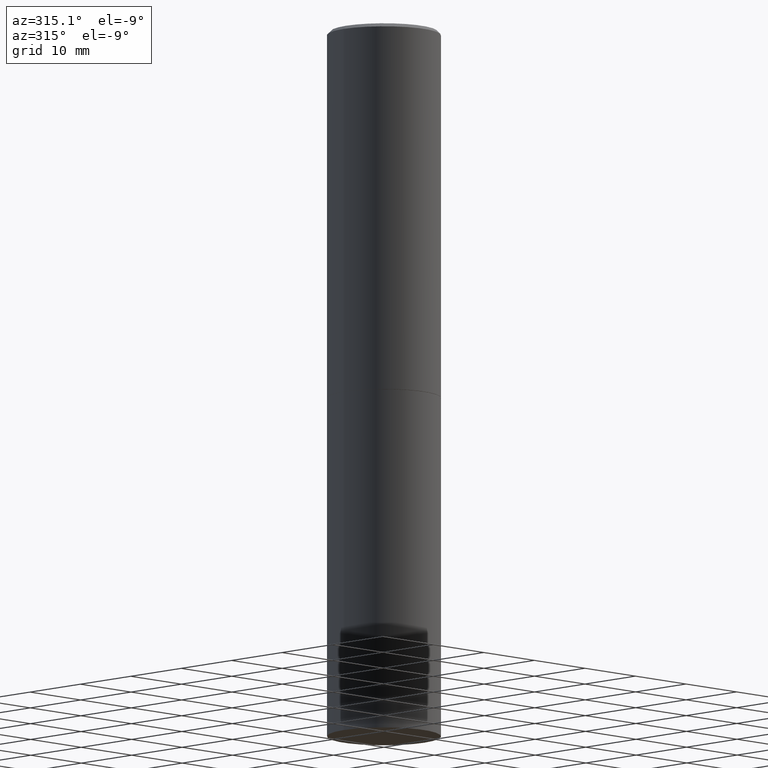
[diagram: clean part render]
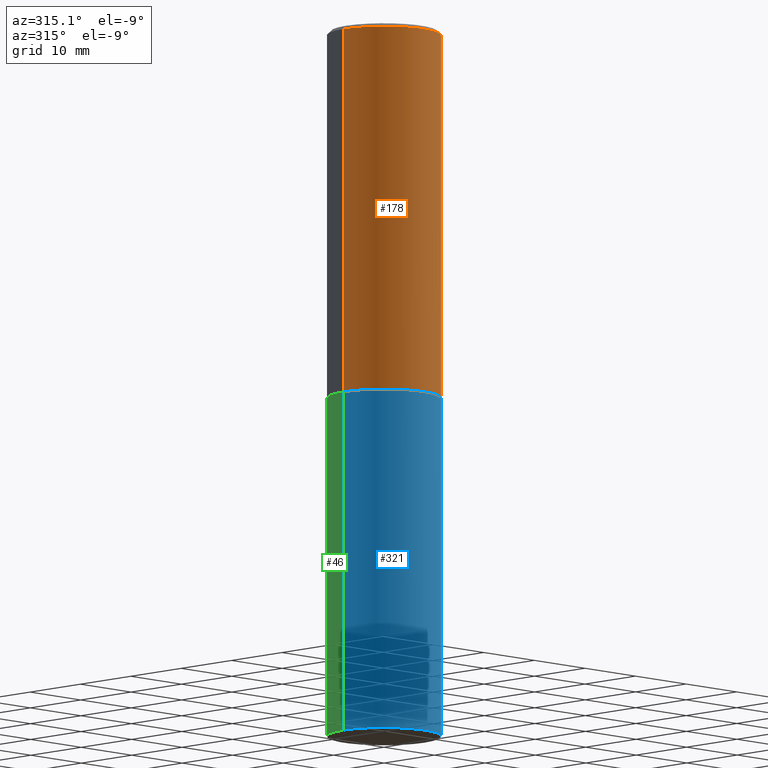
[diagram: same view with three faces highlighted in distinct colors, each labeled with its STEP entity id]
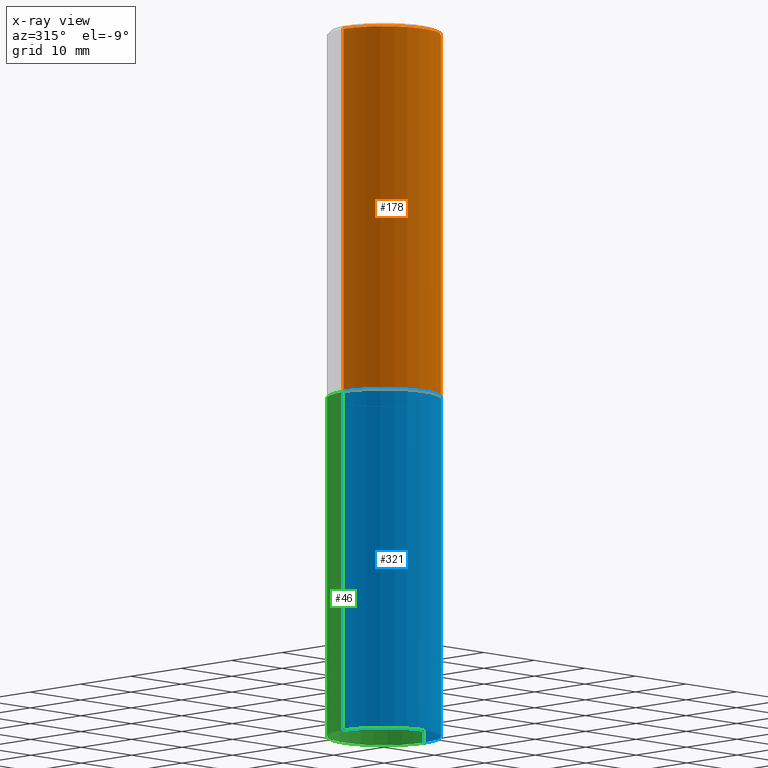
[diagram: x-ray of the same camera — body ghosted, the three highlighted faces saturated]
A machine part, auxiliary view with three faces highlighted in distinct colors.
The next image is the same camera in x-ray (body ghosted, the three faces saturated) — at least one of them is partly hidden behind the body in this view.
Their STEP definitions:

[orange] entity #178 — the highlighted cylindrical surface (partial cylindrical patch) has radius 7.9997 mm, axis along (-0, 0, 1).
#2 = AXIS2_PLACEMENT_3D ( 'NONE', #97, #223, #203 ) ;
#7 = DIRECTION ( 'NONE',  ( 1.000000000000000000, -6.982962677686266711E-15, 0.000000000000000000 ) ) ;
#9 = LINE ( 'NONE', #352, #198 ) ;
#12 = CARTESIAN_POINT ( 'NONE',  ( 0.000000000000000000, 0.000000000000000000, 0.000000000000000000 ) ) ;
#13 = CARTESIAN_POINT ( 'NONE',  ( -0.3149500000000000077, -1.369195024882416092E-15, -2.046199999999999797 ) ) ;
#14 = CIRCLE ( 'NONE', #2, 0.3149500000000000077 ) ;
#37 = VERTEX_POINT ( 'NONE', #239 ) ;
#41 = EDGE_CURVE ( 'NONE', #37, #181, #272, .T. ) ;
#47 = CARTESIAN_POINT ( 'NONE',  ( 0.3149499999999998967, -2.199284095337288688E-15, 1.535751875536929289E-29 ) ) ;
#52 = VERTEX_POINT ( 'NONE', #271 ) ;
#55 = ORIENTED_EDGE ( 'NONE', *, *, #41, .T. ) ;
#64 = DIRECTION ( 'NONE',  ( -2.445468806185136597E-29, 3.491481338843145583E-15, 1.000000000000000000 ) ) ;
#71 = VERTEX_POINT ( 'NONE', #13 ) ;
#79 = CYLINDRICAL_SURFACE ( 'NONE', #283, 0.3149499999999998967 ) ;
#97 = CARTESIAN_POINT ( 'NONE',  ( 5.003918271216025517E-29, -7.144269115540843617E-15, -2.046199999999999797 ) ) ;
#116 = EDGE_CURVE ( 'NONE', #71, #37, #14, .T. ) ;
#134 = DIRECTION ( 'NONE',  ( -2.445468806185136877E-29, 3.491481338843145188E-15, 1.000000000000000000 ) ) ;
#135 = AXIS2_PLACEMENT_3D ( 'NONE', #267, #64, #7 ) ;
#137 = CARTESIAN_POINT ( 'NONE',  ( 0.3149499999999997302, -2.230543471175005478E-15, -0.02000000000000006981 ) ) ;
#156 = DIRECTION ( 'NONE',  ( -2.445468806185136597E-29, 3.491481338843145583E-15, 1.000000000000000000 ) ) ;
#178 = ADVANCED_FACE ( 'NONE', ( #193 ), #79, .T. ) ;
#181 = VERTEX_POINT ( 'NONE', #137 ) ;
#188 = DIRECTION ( 'NONE',  ( -2.445468806185136877E-29, 3.491481338843145188E-15, 1.000000000000000000 ) ) ;
#193 = FACE_OUTER_BOUND ( 'NONE', #319, .T. ) ;
#198 = VECTOR ( 'NONE', #188, 39.37007874015748143 ) ;
#202 = ORIENTED_EDGE ( 'NONE', *, *, #256, .F. ) ;
#203 = DIRECTION ( 'NONE',  ( 1.000000000000000000, -6.982962677686266711E-15, 0.000000000000000000 ) ) ;
#210 = ORIENTED_EDGE ( 'NONE', *, *, #116, .T. ) ;
#212 = ORIENTED_EDGE ( 'NONE', *, *, #292, .F. ) ;
#223 = DIRECTION ( 'NONE',  ( -2.445468806185136597E-29, 3.491481338843145583E-15, 1.000000000000000000 ) ) ;
#239 = CARTESIAN_POINT ( 'NONE',  ( 0.3149500000000000077, -9.343553210878133488E-15, -2.046199999999999797 ) ) ;
#256 = EDGE_CURVE ( 'NONE', #71, #52, #9, .T. ) ;
#267 = CARTESIAN_POINT ( 'NONE',  ( 4.890937612370289799E-31, -6.982962677686315028E-17, -0.02000000000000006981 ) ) ;
#271 = CARTESIAN_POINT ( 'NONE',  ( -0.3149499999999997302, 2.129454468560424601E-15, -0.02000000000000006981 ) ) ;
#272 = LINE ( 'NONE', #47, #275 ) ;
#275 = VECTOR ( 'NONE', #134, 39.37007874015748143 ) ;
#283 = AXIS2_PLACEMENT_3D ( 'NONE', #12, #156, #333 ) ;
#292 = EDGE_CURVE ( 'NONE', #52, #181, #362, .T. ) ;
#319 = EDGE_LOOP ( 'NONE', ( #202, #210, #55, #212 ) ) ;
#333 = DIRECTION ( 'NONE',  ( 1.000000000000000000, -6.982962677686265922E-15, 4.876176775795935232E-29 ) ) ;
#352 = CARTESIAN_POINT ( 'NONE',  ( -0.3149499999999998967, 2.237854346276434801E-15, -1.549218606675782116E-29 ) ) ;
#362 = CIRCLE ( 'NONE', #135, 0.3149499999999997302 ) ;

[blue] entity #321 — the highlighted cylindrical surface (partial cylindrical patch) has radius 7.9997 mm, axis along (-0, 0, 1).
#17 = VERTEX_POINT ( 'NONE', #304 ) ;
#25 = CIRCLE ( 'NONE', #31, 0.3149500000000000077 ) ;
#31 = AXIS2_PLACEMENT_3D ( 'NONE', #103, #215, #76 ) ;
#44 = AXIS2_PLACEMENT_3D ( 'NONE', #228, #346, #177 ) ;
#60 = EDGE_LOOP ( 'NONE', ( #253, #61, #230, #309 ) ) ;
#61 = ORIENTED_EDGE ( 'NONE', *, *, #273, .T. ) ;
#67 = CARTESIAN_POINT ( 'NONE',  ( 5.006363740022211120E-29, -7.147760596879686624E-15, -2.047199999999999687 ) ) ;
#72 = CARTESIAN_POINT ( 'NONE',  ( -0.3149500000000000077, -8.209006967676138246E-15, -2.047199999999999687 ) ) ;
#76 = DIRECTION ( 'NONE',  ( 1.000000000000000000, -6.982962677686269866E-15, 0.000000000000000000 ) ) ;
#83 = EDGE_CURVE ( 'NONE', #170, #200, #165, .T. ) ;
#87 = CIRCLE ( 'NONE', #209, 0.3149500000000000077 ) ;
#103 = CARTESIAN_POINT ( 'NONE',  ( 9.627810689950883669E-29, -1.374596203102546341E-14, -3.937000000000000277 ) ) ;
#104 = CARTESIAN_POINT ( 'NONE',  ( 0.3149500000000000077, -2.199284095337289871E-15, 1.535751875536930130E-29 ) ) ;
#150 = CARTESIAN_POINT ( 'NONE',  ( 0.3149500000000000077, -1.594524612636275486E-14, -3.937000000000000277 ) ) ;
#165 = LINE ( 'NONE', #104, #168 ) ;
#168 = VECTOR ( 'NONE', #235, 39.37007874015748143 ) ;
#170 = VERTEX_POINT ( 'NONE', #150 ) ;
#177 = DIRECTION ( 'NONE',  ( 1.000000000000000000, -6.982962677686266711E-15, 4.876176775795936353E-29 ) ) ;
#190 = LINE ( 'NONE', #268, #314 ) ;
#200 = VERTEX_POINT ( 'NONE', #353 ) ;
#205 = FACE_OUTER_BOUND ( 'NONE', #60, .T. ) ;
#207 = DIRECTION ( 'NONE',  ( -2.445468806185136597E-29, 3.491481338843145583E-15, 1.000000000000000000 ) ) ;
#209 = AXIS2_PLACEMENT_3D ( 'NONE', #67, #207, #229 ) ;
#214 = EDGE_CURVE ( 'NONE', #17, #324, #190, .T. ) ;
#215 = DIRECTION ( 'NONE',  ( -2.445468806185136597E-29, 3.491481338843145583E-15, 1.000000000000000000 ) ) ;
#228 = CARTESIAN_POINT ( 'NONE',  ( 0.000000000000000000, 0.000000000000000000, 0.000000000000000000 ) ) ;
#229 = DIRECTION ( 'NONE',  ( 1.000000000000000000, -6.982962677686269866E-15, 0.000000000000000000 ) ) ;
#230 = ORIENTED_EDGE ( 'NONE', *, *, #83, .T. ) ;
#235 = DIRECTION ( 'NONE',  ( -2.445468806185136877E-29, 3.491481338843145188E-15, 1.000000000000000000 ) ) ;
#253 = ORIENTED_EDGE ( 'NONE', *, *, #214, .F. ) ;
#268 = CARTESIAN_POINT ( 'NONE',  ( -0.3149500000000000077, 2.237854346276435590E-15, -1.549218606675782676E-29 ) ) ;
#273 = EDGE_CURVE ( 'NONE', #17, #170, #25, .T. ) ;
#274 = DIRECTION ( 'NONE',  ( -2.445468806185136877E-29, 3.491481338843145188E-15, 1.000000000000000000 ) ) ;
#304 = CARTESIAN_POINT ( 'NONE',  ( -0.3149500000000000077, -8.209006967676138246E-15, -3.937000000000000277 ) ) ;
#309 = ORIENTED_EDGE ( 'NONE', *, *, #310, .F. ) ;
#310 = EDGE_CURVE ( 'NONE', #324, #200, #87, .T. ) ;
#314 = VECTOR ( 'NONE', #274, 39.37007874015748143 ) ;
#321 = ADVANCED_FACE ( 'NONE', ( #205 ), #327, .T. ) ;
#324 = VERTEX_POINT ( 'NONE', #72 ) ;
#327 = CYLINDRICAL_SURFACE ( 'NONE', #44, 0.3149500000000000077 ) ;
#346 = DIRECTION ( 'NONE',  ( -2.445468806185136597E-29, 3.491481338843145583E-15, 1.000000000000000000 ) ) ;
#353 = CARTESIAN_POINT ( 'NONE',  ( 0.3149500000000000077, -9.347044692216978073E-15, -2.047199999999999687 ) ) ;

[green] entity #46 — the highlighted cylindrical surface (partial cylindrical patch) has radius 7.9997 mm, axis along (-0, 0, 1).
#17 = VERTEX_POINT ( 'NONE', #304 ) ;
#46 = ADVANCED_FACE ( 'NONE', ( #329 ), #337, .T. ) ;
#72 = CARTESIAN_POINT ( 'NONE',  ( -0.3149500000000000077, -8.209006967676138246E-15, -2.047199999999999687 ) ) ;
#82 = CARTESIAN_POINT ( 'NONE',  ( 5.006363740022211120E-29, -7.147760596879686624E-15, -2.047199999999999687 ) ) ;
#83 = EDGE_CURVE ( 'NONE', #170, #200, #165, .T. ) ;
#94 = EDGE_CURVE ( 'NONE', #200, #324, #343, .T. ) ;
#104 = CARTESIAN_POINT ( 'NONE',  ( 0.3149500000000000077, -2.199284095337289871E-15, 1.535751875536930130E-29 ) ) ;
#117 = AXIS2_PLACEMENT_3D ( 'NONE', #82, #276, #219 ) ;
#126 = DIRECTION ( 'NONE',  ( 1.000000000000000000, -6.982962677686269866E-15, 0.000000000000000000 ) ) ;
#150 = CARTESIAN_POINT ( 'NONE',  ( 0.3149500000000000077, -1.594524612636275486E-14, -3.937000000000000277 ) ) ;
#165 = LINE ( 'NONE', #104, #168 ) ;
#168 = VECTOR ( 'NONE', #235, 39.37007874015748143 ) ;
#169 = AXIS2_PLACEMENT_3D ( 'NONE', #183, #295, #126 ) ;
#170 = VERTEX_POINT ( 'NONE', #150 ) ;
#183 = CARTESIAN_POINT ( 'NONE',  ( 9.627810689950883669E-29, -1.374596203102546341E-14, -3.937000000000000277 ) ) ;
#184 = ORIENTED_EDGE ( 'NONE', *, *, #94, .F. ) ;
#190 = LINE ( 'NONE', #268, #314 ) ;
#192 = ORIENTED_EDGE ( 'NONE', *, *, #320, .T. ) ;
#197 = DIRECTION ( 'NONE',  ( -2.445468806185136597E-29, 3.491481338843145583E-15, 1.000000000000000000 ) ) ;
#200 = VERTEX_POINT ( 'NONE', #353 ) ;
#214 = EDGE_CURVE ( 'NONE', #17, #324, #190, .T. ) ;
#218 = CARTESIAN_POINT ( 'NONE',  ( 0.000000000000000000, 0.000000000000000000, 0.000000000000000000 ) ) ;
#219 = DIRECTION ( 'NONE',  ( 1.000000000000000000, -6.982962677686269866E-15, 0.000000000000000000 ) ) ;
#226 = EDGE_LOOP ( 'NONE', ( #192, #332, #184, #266 ) ) ;
#235 = DIRECTION ( 'NONE',  ( -2.445468806185136877E-29, 3.491481338843145188E-15, 1.000000000000000000 ) ) ;
#250 = CIRCLE ( 'NONE', #169, 0.3149500000000000077 ) ;
#266 = ORIENTED_EDGE ( 'NONE', *, *, #83, .F. ) ;
#268 = CARTESIAN_POINT ( 'NONE',  ( -0.3149500000000000077, 2.237854346276435590E-15, -1.549218606675782676E-29 ) ) ;
#274 = DIRECTION ( 'NONE',  ( -2.445468806185136877E-29, 3.491481338843145188E-15, 1.000000000000000000 ) ) ;
#276 = DIRECTION ( 'NONE',  ( -2.445468806185136597E-29, 3.491481338843145583E-15, 1.000000000000000000 ) ) ;
#295 = DIRECTION ( 'NONE',  ( -2.445468806185136597E-29, 3.491481338843145583E-15, 1.000000000000000000 ) ) ;
#304 = CARTESIAN_POINT ( 'NONE',  ( -0.3149500000000000077, -8.209006967676138246E-15, -3.937000000000000277 ) ) ;
#308 = DIRECTION ( 'NONE',  ( 1.000000000000000000, -6.982962677686266711E-15, 4.876176775795936353E-29 ) ) ;
#314 = VECTOR ( 'NONE', #274, 39.37007874015748143 ) ;
#320 = EDGE_CURVE ( 'NONE', #170, #17, #250, .T. ) ;
#324 = VERTEX_POINT ( 'NONE', #72 ) ;
#329 = FACE_OUTER_BOUND ( 'NONE', #226, .T. ) ;
#330 = AXIS2_PLACEMENT_3D ( 'NONE', #218, #197, #308 ) ;
#332 = ORIENTED_EDGE ( 'NONE', *, *, #214, .T. ) ;
#337 = CYLINDRICAL_SURFACE ( 'NONE', #330, 0.3149500000000000077 ) ;
#343 = CIRCLE ( 'NONE', #117, 0.3149500000000000077 ) ;
#353 = CARTESIAN_POINT ( 'NONE',  ( 0.3149500000000000077, -9.347044692216978073E-15, -2.047199999999999687 ) ) ;